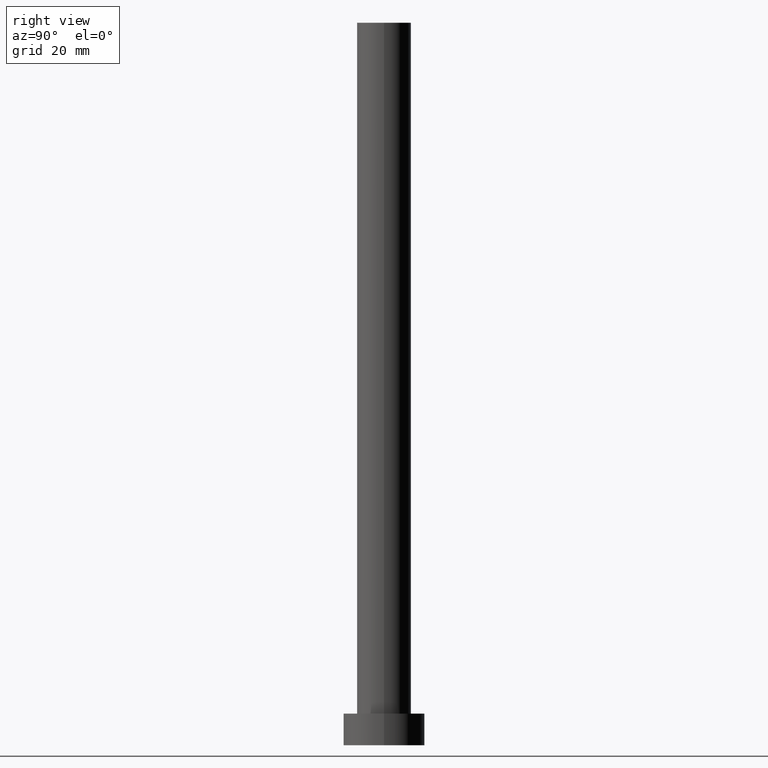
[diagram: clean part render]
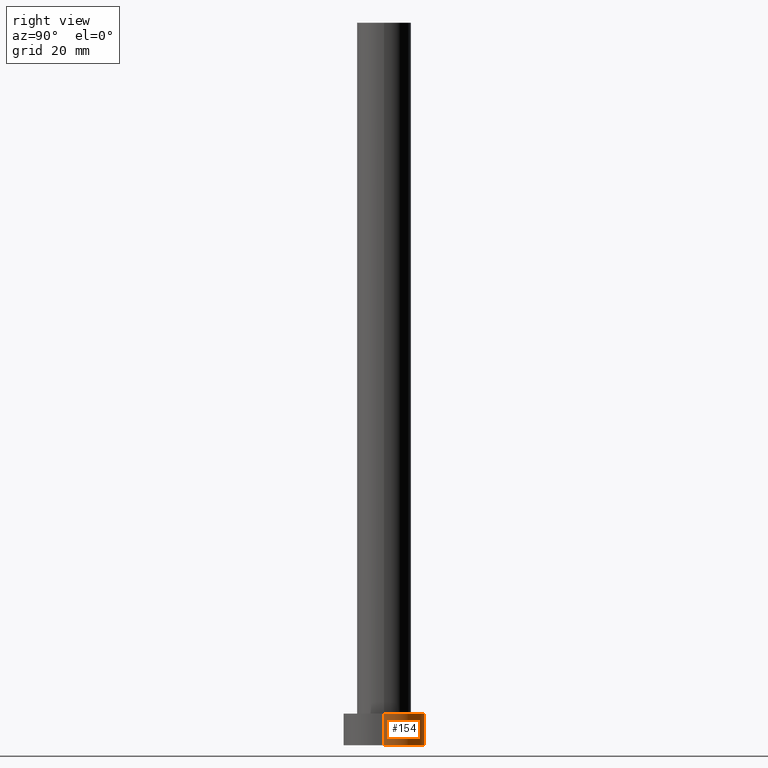
[diagram: same view with one face highlighted and labeled with its STEP entity id]
A machine part, right view. The second image highlights one B-rep face of the part: STEP entity #154.
In plain terms, the highlighted cylindrical surface (partial cylindrical patch) has radius 9 mm, axis along (-0, -0, -1).
Its self-contained STEP definition (entity closure, byte-faithful):
#4 = FACE_OUTER_BOUND ( 'NONE', #169, .T. ) ;
#7 = VECTOR ( 'NONE', #105, 1000.000000000000000 ) ;
#12 = DIRECTION ( 'NONE',  ( -0.000000000000000000, -0.000000000000000000, -1.000000000000000000 ) ) ;
#15 = CARTESIAN_POINT ( 'NONE',  ( -9.000000000000000000, 0.000000000000000000, 7.000000000000000000 ) ) ;
#18 = CARTESIAN_POINT ( 'NONE',  ( -9.000000000000000000, 0.000000000000000000, 0.000000000000000000 ) ) ;
#30 = ORIENTED_EDGE ( 'NONE', *, *, #56, .F. ) ;
#35 = LINE ( 'NONE', #116, #7 ) ;
#37 = EDGE_CURVE ( 'NONE', #129, #115, #90, .T. ) ;
#47 = CYLINDRICAL_SURFACE ( 'NONE', #188, 9.000000000000000000 ) ;
#50 = CARTESIAN_POINT ( 'NONE',  ( 9.000000000000000000, 1.102182119232617714E-15, 0.000000000000000000 ) ) ;
#56 = EDGE_CURVE ( 'NONE', #91, #115, #35, .T. ) ;
#58 = DIRECTION ( 'NONE',  ( 0.000000000000000000, 0.000000000000000000, 1.000000000000000000 ) ) ;
#62 = DIRECTION ( 'NONE',  ( -0.000000000000000000, -0.000000000000000000, -1.000000000000000000 ) ) ;
#63 = EDGE_CURVE ( 'NONE', #186, #91, #181, .T. ) ;
#77 = DIRECTION ( 'NONE',  ( 1.000000000000000000, 0.000000000000000000, 0.000000000000000000 ) ) ;
#79 = LINE ( 'NONE', #193, #185 ) ;
#83 = EDGE_CURVE ( 'NONE', #186, #129, #79, .T. ) ;
#84 = DIRECTION ( 'NONE',  ( -1.000000000000000000, 0.000000000000000000, 0.000000000000000000 ) ) ;
#90 = CIRCLE ( 'NONE', #131, 9.000000000000000000 ) ;
#91 = VERTEX_POINT ( 'NONE', #15 ) ;
#96 = ORIENTED_EDGE ( 'NONE', *, *, #83, .T. ) ;
#101 = CARTESIAN_POINT ( 'NONE',  ( 0.000000000000000000, 0.000000000000000000, 0.000000000000000000 ) ) ;
#105 = DIRECTION ( 'NONE',  ( -0.000000000000000000, -0.000000000000000000, -1.000000000000000000 ) ) ;
#115 = VERTEX_POINT ( 'NONE', #18 ) ;
#116 = CARTESIAN_POINT ( 'NONE',  ( -9.000000000000000000, 0.000000000000000000, 7.000000000000000000 ) ) ;
#119 = DIRECTION ( 'NONE',  ( 1.000000000000000000, 0.000000000000000000, 0.000000000000000000 ) ) ;
#129 = VERTEX_POINT ( 'NONE', #50 ) ;
#131 = AXIS2_PLACEMENT_3D ( 'NONE', #101, #255, #119 ) ;
#154 = ADVANCED_FACE ( 'NONE', ( #4 ), #47, .T. ) ;
#158 = CARTESIAN_POINT ( 'NONE',  ( 0.000000000000000000, 0.000000000000000000, 7.000000000000000000 ) ) ;
#164 = CARTESIAN_POINT ( 'NONE',  ( 0.000000000000000000, 0.000000000000000000, 7.000000000000000000 ) ) ;
#169 = EDGE_LOOP ( 'NONE', ( #184, #96, #224, #30 ) ) ;
#176 = CARTESIAN_POINT ( 'NONE',  ( 9.000000000000000000, 1.102182119232617714E-15, 7.000000000000000000 ) ) ;
#181 = CIRCLE ( 'NONE', #194, 9.000000000000000000 ) ;
#184 = ORIENTED_EDGE ( 'NONE', *, *, #63, .F. ) ;
#185 = VECTOR ( 'NONE', #12, 1000.000000000000000 ) ;
#186 = VERTEX_POINT ( 'NONE', #176 ) ;
#188 = AXIS2_PLACEMENT_3D ( 'NONE', #164, #62, #84 ) ;
#193 = CARTESIAN_POINT ( 'NONE',  ( 9.000000000000000000, 1.102182119232617714E-15, 7.000000000000000000 ) ) ;
#194 = AXIS2_PLACEMENT_3D ( 'NONE', #158, #58, #77 ) ;
#224 = ORIENTED_EDGE ( 'NONE', *, *, #37, .T. ) ;
#255 = DIRECTION ( 'NONE',  ( 0.000000000000000000, 0.000000000000000000, 1.000000000000000000 ) ) ;